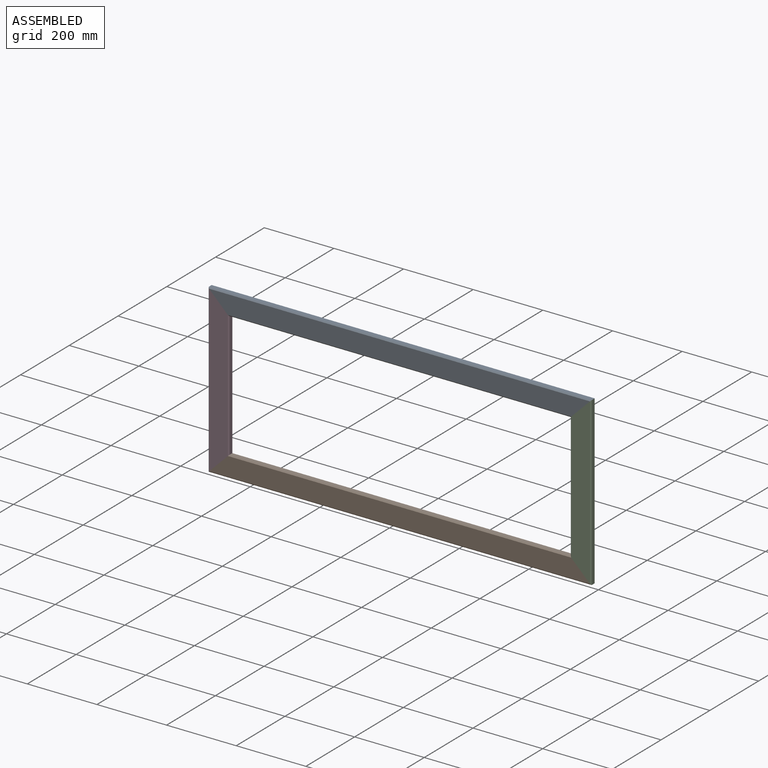
[diagram: assembled view]
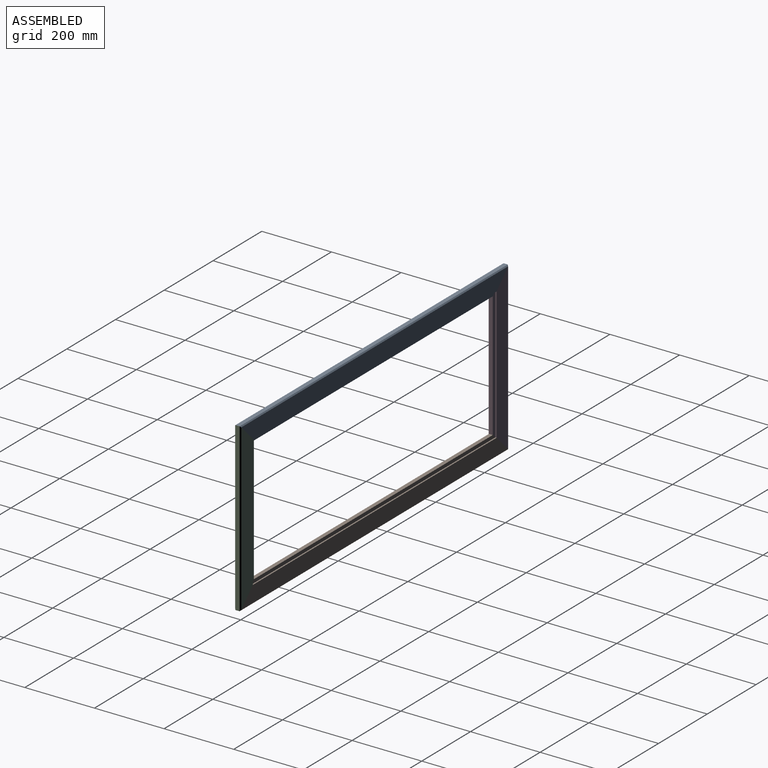
[diagram: assembled view, second angle]
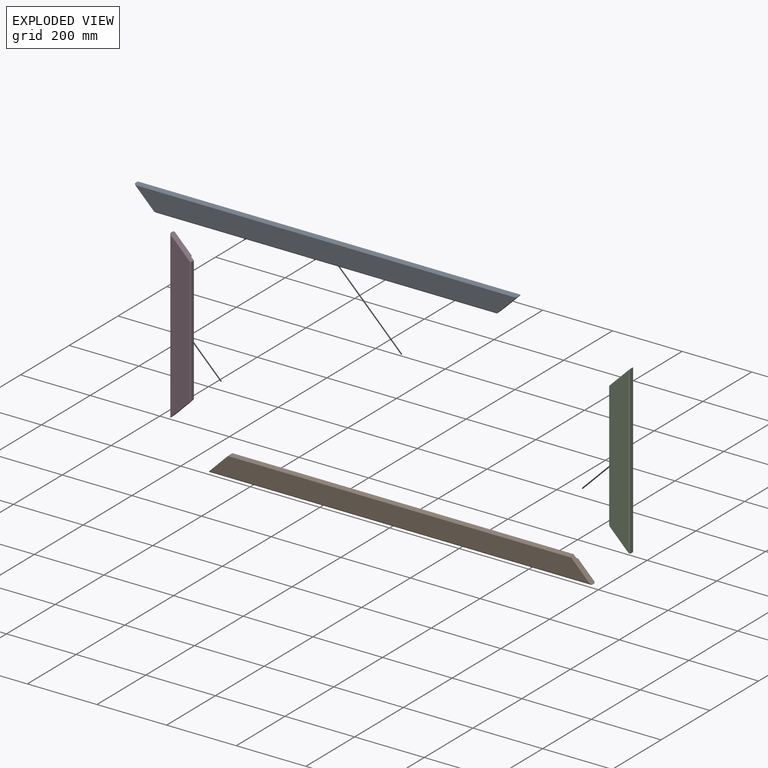
[diagram: exploded view]
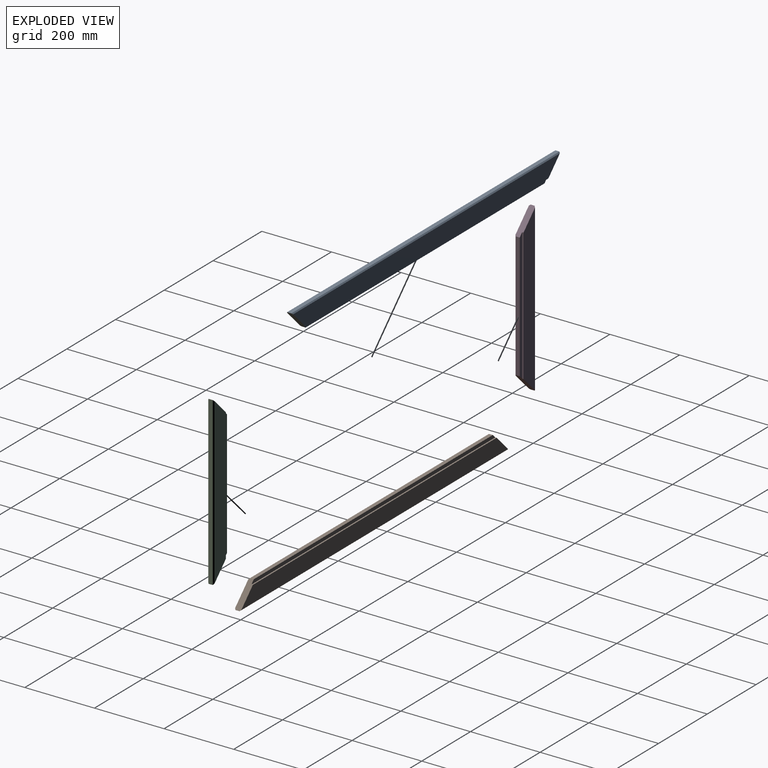
[diagram: exploded view, second angle]
ASSEMBLY  parts=4 mates=3
PART A: 11 faces, bbox 1100x18x60 mm
  f0: plane 60x60mm, normal (0.71,0,-0.71), area 1451.7mm2, adj f1,f3,f4,f5,f6,f7,f8,f9
  f1: plane 1100x12mm, normal (0,0,1), area 13200mm2, adj f0,f2,f9,f10
  f2: plane 60x60mm, normal (-0.71,0,-0.71), area 1451.7mm2, adj f1,f3,f4,f5,f6,f7,f8,f9
  f3: plane 980x11mm, normal (0,0,-1), area 10780mm2, adj f0,f2,f7,f8
  f4: plane 1094x54mm, normal (0,-1,0), area 56160mm2, adj f0,f2,f8,f10
  f5: plane 1094x47mm, normal (0,1,0), area 49209mm2, adj f0,f2,f6,f9
  f6: plane 1000x4mm, normal (0,0,-1), area 4000mm2, adj f0,f2,f5,f7
  f7: plane 1000x10mm, normal (0,1,0), area 9900mm2, adj f0,f2,f3,f6
  f8: plane 986x3mm, normal (0,-0.71,-0.71), area 4170.5mm2, adj f0,f2,f3,f4
  f9: plane 1100x3mm, normal (0,0.71,0.71), area 4654.2mm2, adj f0,f1,f2,f5
  f10: plane 1100x3mm, normal (0,-0.71,0.71), area 4654.2mm2, adj f0,f1,f2,f4
PART B: same geometry as A
PART C: 11 faces, bbox 60x18x480 mm
  f0: plane 474x47mm, normal (0,1,0), area 20069mm2, adj f1,f3,f6,f8
  f1: plane 60x60mm, normal (-0.71,0,0.71), area 1451.7mm2, adj f0,f2,f4,f5,f6,f7,f8,f9
  f2: plane 360x11mm, normal (-1,0,0), area 3960mm2, adj f1,f3,f7,f10
  f3: plane 60x60mm, normal (-0.71,0,-0.71), area 1451.7mm2, adj f0,f2,f4,f5,f6,f7,f8,f9
  f4: plane 480x12mm, normal (1,0,0), area 5760mm2, adj f1,f3,f8,f9
  f5: plane 474x54mm, normal (0,-1,0), area 22680mm2, adj f1,f3,f9,f10
  f6: plane 380x4mm, normal (-1,0,0), area 1520mm2, adj f0,f1,f3,f7
  f7: plane 380x10mm, normal (0,1,0), area 3700mm2, adj f1,f2,f3,f6
  f8: plane 480x3mm, normal (0.71,0.71,0), area 2023.7mm2, adj f0,f1,f3,f4
  f9: plane 480x3mm, normal (0.71,-0.71,0), area 2023.7mm2, adj f1,f3,f4,f5
  f10: plane 366x3mm, normal (-0.71,-0.71,0), area 1540.1mm2, adj f1,f2,f3,f5
PART D: same geometry as C
PLACE A t=(-155.72,-4.11,115.19)mm fixed
PLACE B rot(axis=(0,1,0),180deg) t=(-155.72,-4.11,115.19)mm
PLACE C t=(-155.72,-4.11,115.19)mm
PLACE D rot(axis=(0,1,0),180deg) t=(-155.72,-4.11,115.19)mm
MATE fastened B.f2 <-> C.f3  axis (0.71,0,0.71) through (365.13,-13.35,-95.65)mm
MATE fastened D.f1 <-> B.f0  axis (0.71,0,-0.71) through (-676.56,-13.35,-95.65)mm
MATE fastened A.f0 <-> C.f1  axis (0.71,0,-0.71) through (365.13,-13.35,326.04)mm
